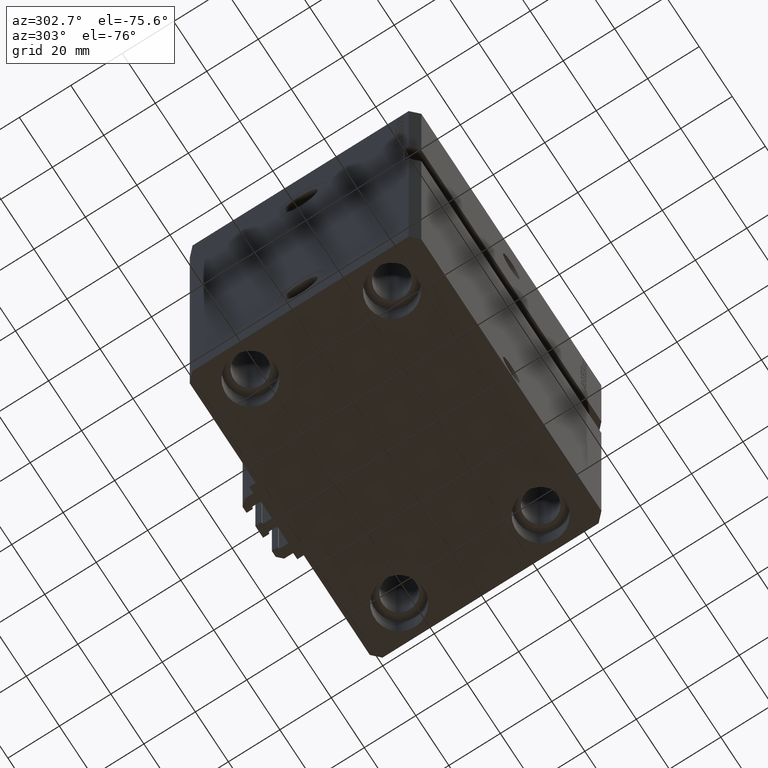
[diagram: clean part render]
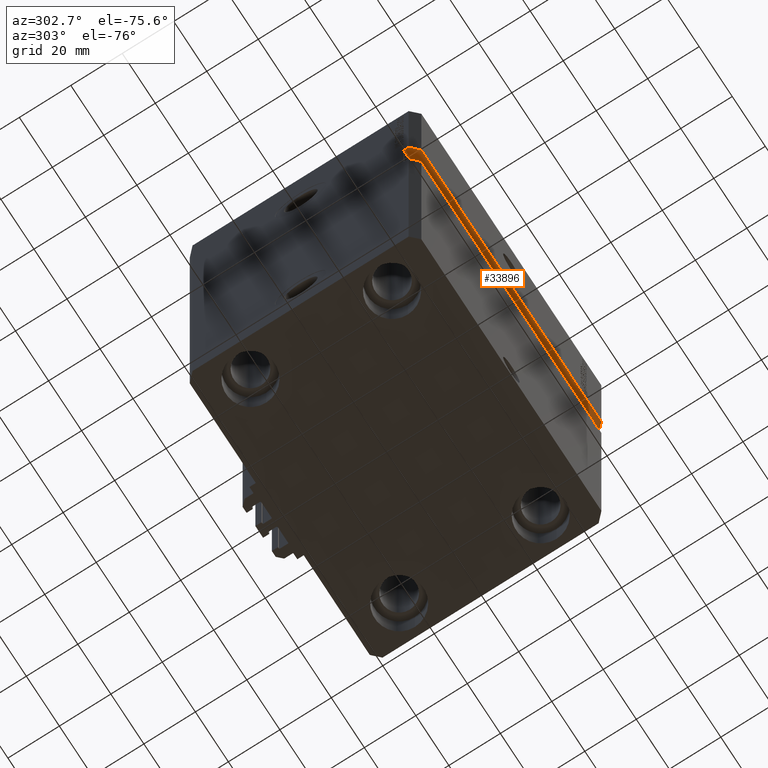
[diagram: same view with one face highlighted and labeled with its STEP entity id]
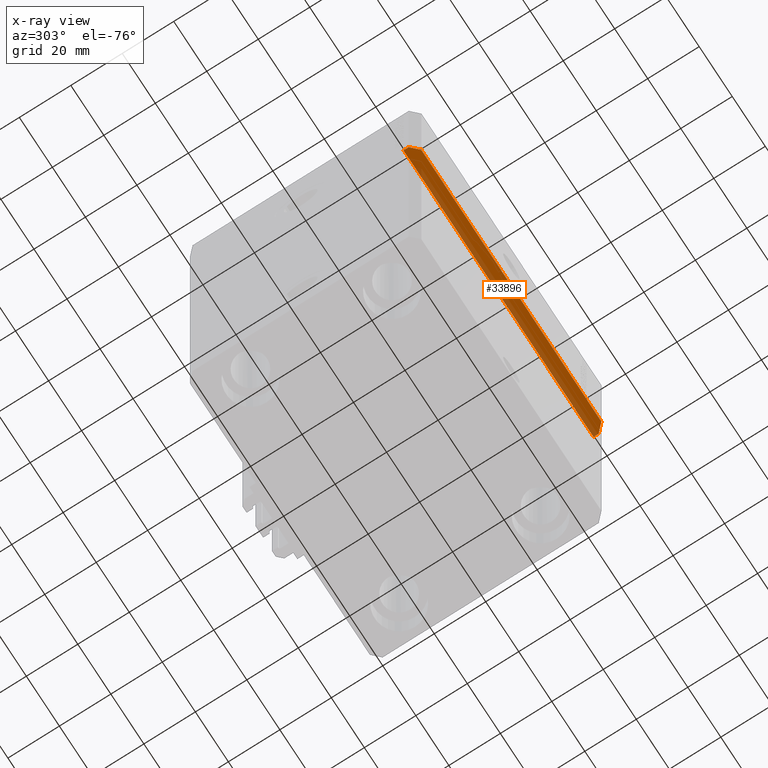
[diagram: x-ray of the same camera — body ghosted, the highlighted face saturated]
A machine part, auxiliary view. The second image highlights one B-rep face of the part: STEP entity #33896.
The next image is the same camera in x-ray: the body ghosted, the highlighted face saturated — about 31% of this face is hidden behind the body in this view.
In plain terms, the highlighted planar face has unit normal (-0, -0, 1).
Its self-contained STEP definition (entity closure, byte-faithful):
#1594 = LINE ( 'NONE', #43645, #22180 ) ;
#1653 = AXIS2_PLACEMENT_3D ( 'NONE', #18802, #15351, #42134 ) ;
#2110 = CARTESIAN_POINT ( 'NONE',  ( 57.50000000000000711, -39.99999999999998579, -47.49999999999998579 ) ) ;
#3749 = EDGE_CURVE ( 'NONE', #46796, #42738, #16906, .T. ) ;
#4025 = EDGE_CURVE ( 'NONE', #12109, #13973, #1594, .T. ) ;
#4506 = FACE_OUTER_BOUND ( 'NONE', #6584, .T. ) ;
#5461 = DIRECTION ( 'NONE',  ( -0.7071067811865492381, 0.7071067811865457964, -1.279966678274818912E-16 ) ) ;
#6353 = VECTOR ( 'NONE', #10317, 1000.000000000000000 ) ;
#6584 = EDGE_LOOP ( 'NONE', ( #45718, #46036, #15228, #45671, #15899, #15874 ) ) ;
#9333 = DIRECTION ( 'NONE',  ( -0.7071067811865483499, -0.7071067811865466846, -1.279966678274818172E-16 ) ) ;
#10060 = CARTESIAN_POINT ( 'NONE',  ( 54.49999999999999289, -45.00000000000000000, -47.49999999999998579 ) ) ;
#10226 = CARTESIAN_POINT ( 'NONE',  ( -57.50000000000002132, -40.00000000000000000, -47.50000000000000711 ) ) ;
#10317 = DIRECTION ( 'NONE',  ( 1.176083712526788232E-16, -1.000000000000000000, -0.000000000000000000 ) ) ;
#11803 = CARTESIAN_POINT ( 'NONE',  ( -57.50000000000002132, -41.99999999999999289, -47.50000000000001421 ) ) ;
#12109 = VERTEX_POINT ( 'NONE', #28898 ) ;
#13973 = VERTEX_POINT ( 'NONE', #14350 ) ;
#14335 = VECTOR ( 'NONE', #5461, 1000.000000000000227 ) ;
#14350 = CARTESIAN_POINT ( 'NONE',  ( -54.50000000000000711, -45.00000000000000000, -47.49999999999998579 ) ) ;
#15228 = ORIENTED_EDGE ( 'NONE', *, *, #37183, .T. ) ;
#15351 = DIRECTION ( 'NONE',  ( -1.810146235801885321E-16, -2.128883505218272318E-32, 1.000000000000000000 ) ) ;
#15874 = ORIENTED_EDGE ( 'NONE', *, *, #3749, .T. ) ;
#15899 = ORIENTED_EDGE ( 'NONE', *, *, #19210, .F. ) ;
#16787 = CARTESIAN_POINT ( 'NONE',  ( 57.50000000000000711, -41.99999999999998579, -47.49999999999998579 ) ) ;
#16906 = LINE ( 'NONE', #32156, #30006 ) ;
#17722 = LINE ( 'NONE', #10060, #29840 ) ;
#18802 = CARTESIAN_POINT ( 'NONE',  ( 57.50000000000000711, -39.99999999999998579, -47.49999999999998579 ) ) ;
#19210 = EDGE_CURVE ( 'NONE', #46796, #23114, #35859, .T. ) ;
#19774 = PLANE ( 'NONE',  #1653 ) ;
#20187 = VECTOR ( 'NONE', #21115, 1000.000000000000000 ) ;
#21115 = DIRECTION ( 'NONE',  ( -1.000000000000000000, -1.206764157201257045E-16, -1.810146235801885321E-16 ) ) ;
#22180 = VECTOR ( 'NONE', #35058, 1000.000000000000000 ) ;
#23114 = VERTEX_POINT ( 'NONE', #10226 ) ;
#24808 = CARTESIAN_POINT ( 'NONE',  ( 57.50000000000000711, -39.99999999999998579, -47.49999999999998579 ) ) ;
#26164 = VERTEX_POINT ( 'NONE', #11803 ) ;
#27386 = CARTESIAN_POINT ( 'NONE',  ( -57.50000000000002132, -41.99999999999999289, -47.50000000000001421 ) ) ;
#28469 = DIRECTION ( 'NONE',  ( 1.176083712526788232E-16, -1.000000000000000000, -0.000000000000000000 ) ) ;
#28898 = CARTESIAN_POINT ( 'NONE',  ( 54.50000000000000711, -44.99999999999998579, -47.49999999999998579 ) ) ;
#29840 = VECTOR ( 'NONE', #9333, 1000.000000000000000 ) ;
#29860 = EDGE_CURVE ( 'NONE', #42738, #12109, #17722, .T. ) ;
#30006 = VECTOR ( 'NONE', #28469, 1000.000000000000000 ) ;
#32156 = CARTESIAN_POINT ( 'NONE',  ( 57.50000000000000711, -39.99999999999998579, -47.49999999999998579 ) ) ;
#32978 = LINE ( 'NONE', #37386, #6353 ) ;
#33896 = ADVANCED_FACE ( 'NONE', ( #4506 ), #19774, .F. ) ;
#35058 = DIRECTION ( 'NONE',  ( -1.000000000000000000, -1.206764157201257045E-16, -1.810146235801885321E-16 ) ) ;
#35859 = LINE ( 'NONE', #24808, #20187 ) ;
#37183 = EDGE_CURVE ( 'NONE', #13973, #26164, #38920, .T. ) ;
#37386 = CARTESIAN_POINT ( 'NONE',  ( -57.50000000000002132, -40.00000000000000000, -47.50000000000000711 ) ) ;
#38920 = LINE ( 'NONE', #27386, #14335 ) ;
#42134 = DIRECTION ( 'NONE',  ( 1.000000000000000000, 0.000000000000000000, 1.810146235801885321E-16 ) ) ;
#42738 = VERTEX_POINT ( 'NONE', #16787 ) ;
#43645 = CARTESIAN_POINT ( 'NONE',  ( 57.50000000000000711, -44.99999999999998579, -47.49999999999998579 ) ) ;
#45671 = ORIENTED_EDGE ( 'NONE', *, *, #46373, .F. ) ;
#45718 = ORIENTED_EDGE ( 'NONE', *, *, #29860, .T. ) ;
#46036 = ORIENTED_EDGE ( 'NONE', *, *, #4025, .T. ) ;
#46373 = EDGE_CURVE ( 'NONE', #23114, #26164, #32978, .T. ) ;
#46796 = VERTEX_POINT ( 'NONE', #2110 ) ;